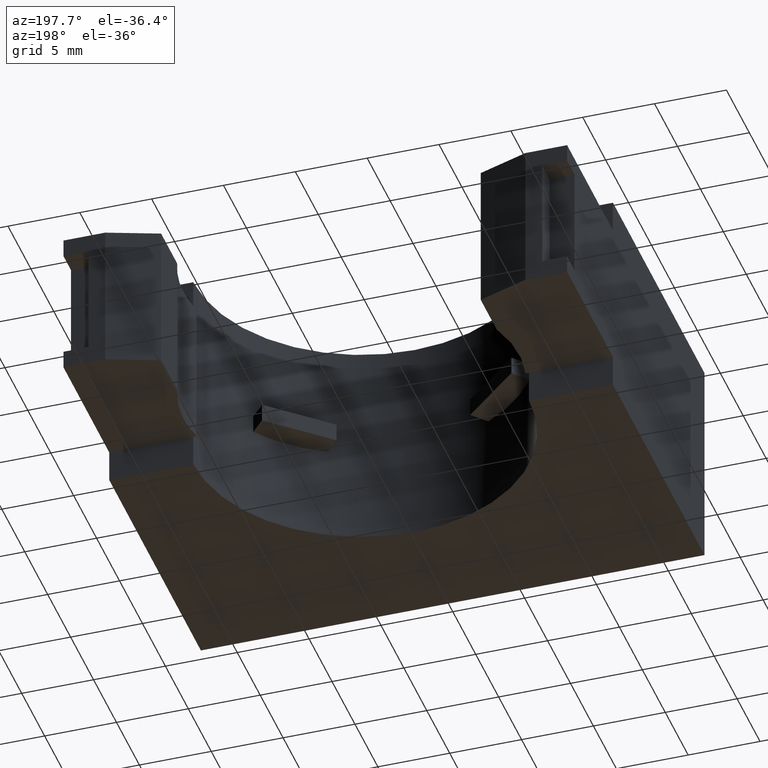
[diagram: clean part render]
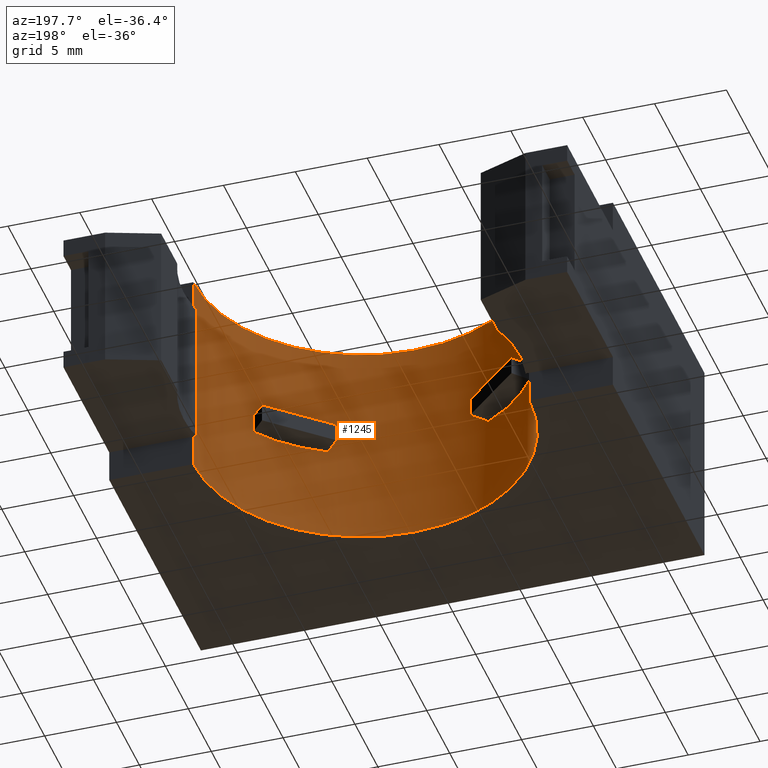
[diagram: same view with one face highlighted and labeled with its STEP entity id]
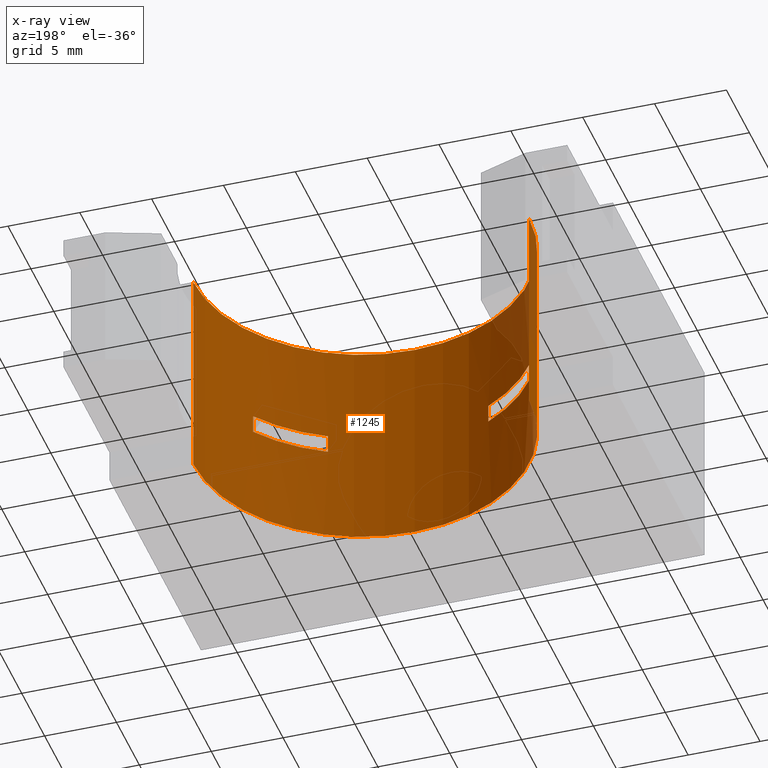
[diagram: x-ray of the same camera — body ghosted, the highlighted face saturated]
A machine part, auxiliary view. The second image highlights one B-rep face of the part: STEP entity #1245.
The next image is the same camera in x-ray: the body ghosted, the highlighted face saturated — about 4% of this face is hidden behind the body in this view.
In plain terms, the highlighted cylindrical surface (partial cylindrical patch) has radius 11.684 mm, axis along (-0, -0, 1).
Its self-contained STEP definition (entity closure, byte-faithful):
#1 = DIRECTION ( 'NONE',  ( -0.0000000000000000000, -0.0000000000000000000, 1.000000000000000000 ) ) ;
#2 = VECTOR ( 'NONE', #1, 39.37007874015748100 ) ;
#3 = CARTESIAN_POINT ( 'NONE',  ( -0.4599999999999998500, 0.1966666666666661600, 4.672832469406376500E-032 ) ) ;
#4 = LINE ( 'NONE', #3, #2 ) ;
#14 = CARTESIAN_POINT ( 'NONE',  ( 0.3788008430227694000, -0.06431210895548904200, 0.3200000000000000600 ) ) ;
#15 = DIRECTION ( 'NONE',  ( -0.0000000000000000000, -8.326672684688672800E-017, 1.000000000000000000 ) ) ;
#16 = VECTOR ( 'NONE', #15, 39.37007874015748100 ) ;
#17 = CARTESIAN_POINT ( 'NONE',  ( 0.3788008430227694000, -0.06431210895548904200, 0.2700000000000000700 ) ) ;
#18 = LINE ( 'NONE', #17, #16 ) ;
#19 = CARTESIAN_POINT ( 'NONE',  ( 0.2199536365769762200, -0.2073387760646955600, 0.2699999999999999600 ) ) ;
#20 = CARTESIAN_POINT ( 'NONE',  ( -0.3788008430227694500, -0.06431210895548888900, 0.3200000000000000600 ) ) ;
#21 = CARTESIAN_POINT ( 'NONE',  ( -0.3788008430227694500, -0.06431210895548888900, 0.2700000000000000700 ) ) ;
#22 = DIRECTION ( 'NONE',  ( -0.0000000000000000000, -8.326672684688672800E-017, 1.000000000000000000 ) ) ;
#23 = VECTOR ( 'NONE', #22, 39.37007874015748100 ) ;
#24 = CARTESIAN_POINT ( 'NONE',  ( -0.3788008430227695100, -0.06431210895548895900, 0.2700000000000000700 ) ) ;
#25 = LINE ( 'NONE', #24, #23 ) ;
#63 = CARTESIAN_POINT ( 'NONE',  ( 0.0000000000000000000, 0.1966666666666659900, 0.3200000000000000600 ) ) ;
#64 = CARTESIAN_POINT ( 'NONE',  ( -0.4599999999999998500, 0.1966666666666659600, 0.5004500000000002800 ) ) ;
#65 = DIRECTION ( 'NONE',  ( -0.0000000000000000000, -0.0000000000000000000, 1.000000000000000000 ) ) ;
#66 = VECTOR ( 'NONE', #65, 39.37007874015748100 ) ;
#67 = CARTESIAN_POINT ( 'NONE',  ( -0.4599999999999998500, 0.1966666666666660200, 0.0000000000000000000 ) ) ;
#68 = LINE ( 'NONE', #67, #66 ) ;
#122 = DIRECTION ( 'NONE',  ( -0.0000000000000000000, -0.0000000000000000000, 1.000000000000000000 ) ) ;
#186 = VECTOR ( 'NONE', #122, 39.37007874015748100 ) ;
#187 = CARTESIAN_POINT ( 'NONE',  ( 0.4599999999999998500, 0.1966666666666660200, 0.0000000000000000000 ) ) ;
#188 = LINE ( 'NONE', #187, #186 ) ;
#189 = CARTESIAN_POINT ( 'NONE',  ( 0.4599999999999998500, 0.1966666666666659300, 0.5899999999999999700 ) ) ;
#190 = CARTESIAN_POINT ( 'NONE',  ( -0.4599999999999998500, 0.1966666666666659300, 0.5899999999999999700 ) ) ;
#191 = DIRECTION ( 'NONE',  ( 1.000000000000000000, 0.0000000000000000000, 0.0000000000000000000 ) ) ;
#192 = DIRECTION ( 'NONE',  ( 0.0000000000000000000, 0.0000000000000000000, 1.000000000000000000 ) ) ;
#193 = CARTESIAN_POINT ( 'NONE',  ( 0.0000000000000000000, 0.1966666666666660200, 0.5899999999999999700 ) ) ;
#194 = AXIS2_PLACEMENT_3D ( 'NONE', #193, #192, #191 ) ;
#195 = CIRCLE ( 'NONE', #194, 0.4599999999999998500 ) ;
#196 = DIRECTION ( 'NONE',  ( 1.000000000000000000, 0.0000000000000000000, 0.0000000000000000000 ) ) ;
#197 = DIRECTION ( 'NONE',  ( -0.0000000000000000000, -0.0000000000000000000, 1.000000000000000000 ) ) ;
#198 = CARTESIAN_POINT ( 'NONE',  ( 0.0000000000000000000, 0.1966666666666660200, 0.0000000000000000000 ) ) ;
#199 = AXIS2_PLACEMENT_3D ( 'NONE', #198, #197, #196 ) ;
#200 = CYLINDRICAL_SURFACE ( 'NONE', #199, 0.4599999999999998500 ) ;
#201 = FACE_BOUND ( 'NONE', #1177, .T. ) ;
#202 = FACE_BOUND ( 'NONE', #1151, .T. ) ;
#203 = FACE_OUTER_BOUND ( 'NONE', #1246, .T. ) ;
#244 = DIRECTION ( 'NONE',  ( -0.0000000000000000000, -8.326672684688672800E-017, 1.000000000000000000 ) ) ;
#245 = VECTOR ( 'NONE', #244, 39.37007874015748100 ) ;
#246 = CARTESIAN_POINT ( 'NONE',  ( 0.2199536365769762200, -0.2073387760646955600, 0.2699999999999999600 ) ) ;
#247 = LINE ( 'NONE', #246, #245 ) ;
#248 = CARTESIAN_POINT ( 'NONE',  ( 0.2199536365769761700, -0.2073387760646953900, 0.3200000000000000600 ) ) ;
#249 = DIRECTION ( 'NONE',  ( 0.0000000000000000000, -1.000000000000000000, -1.484699996556664800E-016 ) ) ;
#250 = DIRECTION ( 'NONE',  ( -0.0000000000000000000, 8.326672684688674100E-017, -1.000000000000000000 ) ) ;
#251 = AXIS2_PLACEMENT_3D ( 'NONE', #63, #250, #249 ) ;
#252 = CIRCLE ( 'NONE', #251, 0.4599999999999999600 ) ;
#613 = CARTESIAN_POINT ( 'NONE',  ( 0.4599999999999998500, 0.1966666666666659600, 0.5004500000000002800 ) ) ;
#614 = DIRECTION ( 'NONE',  ( 0.0000000000000000000, 1.000000000000000000, 1.484699996556664800E-016 ) ) ;
#615 = DIRECTION ( 'NONE',  ( 0.0000000000000000000, 8.326672684688674100E-017, -1.000000000000000000 ) ) ;
#616 = CARTESIAN_POINT ( 'NONE',  ( 0.0000000000000000000, 0.1966666666666659900, 0.3200000000000000600 ) ) ;
#617 = AXIS2_PLACEMENT_3D ( 'NONE', #616, #615, #614 ) ;
#618 = CIRCLE ( 'NONE', #617, 0.4600000000000000200 ) ;
#619 = CARTESIAN_POINT ( 'NONE',  ( -0.2199536365769762500, -0.2073387760646955600, 0.3200000000000000100 ) ) ;
#620 = DIRECTION ( 'NONE',  ( -0.0000000000000000000, -8.326672684688672800E-017, 1.000000000000000000 ) ) ;
#621 = VECTOR ( 'NONE', #620, 39.37007874015748100 ) ;
#622 = CARTESIAN_POINT ( 'NONE',  ( -0.2199536365769762500, -0.2073387760646955600, 0.2699999999999999600 ) ) ;
#623 = LINE ( 'NONE', #622, #621 ) ;
#624 = CARTESIAN_POINT ( 'NONE',  ( -0.4599999999999998500, 0.1966666666666660200, 0.0000000000000000000 ) ) ;
#629 = DIRECTION ( 'NONE',  ( 0.0000000000000000000, 1.000000000000000000, 7.423499982783324000E-017 ) ) ;
#630 = DIRECTION ( 'NONE',  ( 0.0000000000000000000, 8.326672684688674100E-017, -1.000000000000000000 ) ) ;
#631 = CARTESIAN_POINT ( 'NONE',  ( 0.0000000000000000000, 0.1966666666666659900, 0.2700000000000000700 ) ) ;
#632 = AXIS2_PLACEMENT_3D ( 'NONE', #631, #630, #629 ) ;
#633 = CIRCLE ( 'NONE', #632, 0.4600000000000000200 ) ;
#685 = CARTESIAN_POINT ( 'NONE',  ( 0.4599999999999998500, 0.1966666666666660200, 0.08954999999999972700 ) ) ;
#686 = DIRECTION ( 'NONE',  ( -0.0000000000000000000, -0.0000000000000000000, 1.000000000000000000 ) ) ;
#687 = VECTOR ( 'NONE', #686, 39.37007874015748100 ) ;
#688 = CARTESIAN_POINT ( 'NONE',  ( 0.4599999999999998500, 0.1966666666666660200, 0.0000000000000000000 ) ) ;
#689 = LINE ( 'NONE', #688, #687 ) ;
#690 = CARTESIAN_POINT ( 'NONE',  ( 0.4599999999999998500, 0.1966666666666660200, 0.0000000000000000000 ) ) ;
#691 = DIRECTION ( 'NONE',  ( -0.0000000000000000000, -0.0000000000000000000, 1.000000000000000000 ) ) ;
#692 = VECTOR ( 'NONE', #691, 39.37007874015748100 ) ;
#693 = CARTESIAN_POINT ( 'NONE',  ( 0.4599999999999998500, 0.1966666666666660200, 0.0000000000000000000 ) ) ;
#694 = LINE ( 'NONE', #693, #692 ) ;
#707 = CARTESIAN_POINT ( 'NONE',  ( -0.4599999999999998500, 0.1966666666666660200, 0.08954999999999972700 ) ) ;
#708 = DIRECTION ( 'NONE',  ( -0.0000000000000000000, -0.0000000000000000000, 1.000000000000000000 ) ) ;
#709 = VECTOR ( 'NONE', #708, 39.37007874015748100 ) ;
#710 = CARTESIAN_POINT ( 'NONE',  ( -0.4599999999999998500, 0.1966666666666660200, 0.0000000000000000000 ) ) ;
#711 = LINE ( 'NONE', #710, #709 ) ;
#712 = CARTESIAN_POINT ( 'NONE',  ( -0.2199536365769763100, -0.2073387760646954200, 0.2699999999999999600 ) ) ;
#713 = CARTESIAN_POINT ( 'NONE',  ( 0.3788008430227694000, -0.06431210895548904200, 0.2700000000000000700 ) ) ;
#714 = DIRECTION ( 'NONE',  ( 0.0000000000000000000, -1.000000000000000000, -7.423499982783324000E-017 ) ) ;
#715 = DIRECTION ( 'NONE',  ( -0.0000000000000000000, 8.326672684688674100E-017, -1.000000000000000000 ) ) ;
#716 = CARTESIAN_POINT ( 'NONE',  ( 0.0000000000000000000, 0.1966666666666659900, 0.2700000000000000700 ) ) ;
#717 = AXIS2_PLACEMENT_3D ( 'NONE', #716, #715, #714 ) ;
#718 = CIRCLE ( 'NONE', #717, 0.4599999999999999600 ) ;
#725 = DIRECTION ( 'NONE',  ( 1.000000000000000000, 0.0000000000000000000, 0.0000000000000000000 ) ) ;
#726 = DIRECTION ( 'NONE',  ( 0.0000000000000000000, 0.0000000000000000000, 1.000000000000000000 ) ) ;
#727 = CARTESIAN_POINT ( 'NONE',  ( 0.0000000000000000000, 0.1966666666666660200, 0.0000000000000000000 ) ) ;
#737 = AXIS2_PLACEMENT_3D ( 'NONE', #727, #726, #725 ) ;
#738 = CIRCLE ( 'NONE', #737, 0.4599999999999998500 ) ;
#1151 = EDGE_LOOP ( 'NONE', ( #1236, #1166, #1162, #1175 ) ) ;
#1152 = EDGE_CURVE ( 'NONE', #1172, #1180, #738, .T. ) ;
#1153 = ORIENTED_EDGE ( 'NONE', *, *, #1179, .F. ) ;
#1158 = ORIENTED_EDGE ( 'NONE', *, *, #1159, .F. ) ;
#1159 = EDGE_CURVE ( 'NONE', #1160, #1226, #718, .T. ) ;
#1160 = VERTEX_POINT ( 'NONE', #713 ) ;
#1161 = VERTEX_POINT ( 'NONE', #712 ) ;
#1162 = ORIENTED_EDGE ( 'NONE', *, *, #1173, .T. ) ;
#1163 = ORIENTED_EDGE ( 'NONE', *, *, #1164, .T. ) ;
#1164 = EDGE_CURVE ( 'NONE', #1172, #1165, #711, .T. ) ;
#1165 = VERTEX_POINT ( 'NONE', #707 ) ;
#1166 = ORIENTED_EDGE ( 'NONE', *, *, #1167, .F. ) ;
#1167 = EDGE_CURVE ( 'NONE', #1161, #1224, #633, .T. ) ;
#1171 = ORIENTED_EDGE ( 'NONE', *, *, #1152, .F. ) ;
#1172 = VERTEX_POINT ( 'NONE', #624 ) ;
#1173 = EDGE_CURVE ( 'NONE', #1161, #1174, #623, .T. ) ;
#1174 = VERTEX_POINT ( 'NONE', #619 ) ;
#1175 = ORIENTED_EDGE ( 'NONE', *, *, #1176, .T. ) ;
#1176 = EDGE_CURVE ( 'NONE', #1174, #1225, #618, .T. ) ;
#1177 = EDGE_LOOP ( 'NONE', ( #1158, #1227, #1204, #1207 ) ) ;
#1178 = VERTEX_POINT ( 'NONE', #613 ) ;
#1179 = EDGE_CURVE ( 'NONE', #1180, #1182, #694, .T. ) ;
#1180 = VERTEX_POINT ( 'NONE', #690 ) ;
#1181 = EDGE_CURVE ( 'NONE', #1182, #1178, #689, .T. ) ;
#1182 = VERTEX_POINT ( 'NONE', #685 ) ;
#1200 = ORIENTED_EDGE ( 'NONE', *, *, #1181, .F. ) ;
#1201 = EDGE_CURVE ( 'NONE', #1165, #1202, #68, .T. ) ;
#1202 = VERTEX_POINT ( 'NONE', #64 ) ;
#1203 = ORIENTED_EDGE ( 'NONE', *, *, #1237, .T. ) ;
#1204 = ORIENTED_EDGE ( 'NONE', *, *, #1205, .T. ) ;
#1205 = EDGE_CURVE ( 'NONE', #1229, #1206, #252, .T. ) ;
#1206 = VERTEX_POINT ( 'NONE', #248 ) ;
#1207 = ORIENTED_EDGE ( 'NONE', *, *, #1208, .F. ) ;
#1208 = EDGE_CURVE ( 'NONE', #1226, #1206, #247, .T. ) ;
#1215 = ORIENTED_EDGE ( 'NONE', *, *, #1201, .T. ) ;
#1223 = EDGE_CURVE ( 'NONE', #1224, #1225, #25, .T. ) ;
#1224 = VERTEX_POINT ( 'NONE', #21 ) ;
#1225 = VERTEX_POINT ( 'NONE', #20 ) ;
#1226 = VERTEX_POINT ( 'NONE', #19 ) ;
#1227 = ORIENTED_EDGE ( 'NONE', *, *, #1228, .T. ) ;
#1228 = EDGE_CURVE ( 'NONE', #1160, #1229, #18, .T. ) ;
#1229 = VERTEX_POINT ( 'NONE', #14 ) ;
#1236 = ORIENTED_EDGE ( 'NONE', *, *, #1223, .F. ) ;
#1237 = EDGE_CURVE ( 'NONE', #1202, #1249, #4, .T. ) ;
#1245 = ADVANCED_FACE ( 'NONE', ( #203, #202, #201 ), #200, .F. ) ;
#1246 = EDGE_LOOP ( 'NONE', ( #1247, #1251, #1200, #1153, #1171, #1163, #1215, #1203 ) ) ;
#1247 = ORIENTED_EDGE ( 'NONE', *, *, #1248, .T. ) ;
#1248 = EDGE_CURVE ( 'NONE', #1249, #1250, #195, .T. ) ;
#1249 = VERTEX_POINT ( 'NONE', #190 ) ;
#1250 = VERTEX_POINT ( 'NONE', #189 ) ;
#1251 = ORIENTED_EDGE ( 'NONE', *, *, #1252, .F. ) ;
#1252 = EDGE_CURVE ( 'NONE', #1178, #1250, #188, .T. ) ;